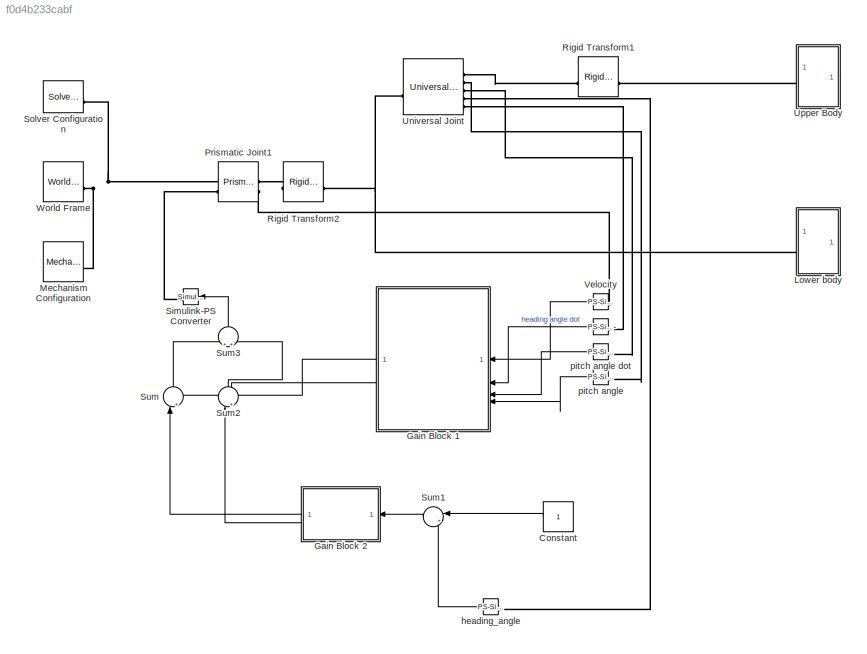
MODEL slx_f0d4b233cabf
KIND model
CONFIG AbsTol = 1e-3
CONFIG EnableMultiTasking = on
CONFIG FixedStep = auto
CONFIG MaxStep = auto
CONFIG MinStep = auto
CONFIG RelTol = 1e-3
CONFIG SampleTimeConstraint = Unconstrained
CONFIG SolverName = VariableStepAuto
CONFIG StartTime = 0.0
CONFIG StopTime = 10.0
BLOCK [Reference] -  REF=nesl_utility/PS-Simulink
Converter
  NameLocation = top
  SourceBlock = nesl_utility/PS-Simulink\nConverter
  SourceType = PS-Simulink\nConverter
BLOCK [Constant] Constant
  NameLocation = top
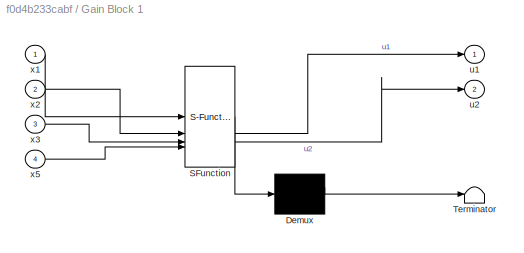
BLOCK [SubSystem] Gain Block 1
  ErrorFcn = Stateflow.Translate.translate
  PermitHierarchicalResolution = ExplicitOnly
  SFBlockType = MATLAB Function
  TreatAsAtomicUnit = on
BLOCK [Demux] Gain Block 1/ Demux 
  Outputs = 1
BLOCK [S-Function] Gain Block 1/ SFunction 
  EnableBusSupport = on
  FunctionName = sf_sfun
  PortCounts = [4 3]
  SFcnIsStateOwnerBlock = off
  SFunctionDeploymentMode = off
  Tag = Stateflow S-Function 2
BLOCK [Terminator] Gain Block 1/ Terminator 
BLOCK [Outport] Gain Block 1/u1
BLOCK [Outport] Gain Block 1/u2
  Port = 2
BLOCK [Inport] Gain Block 1/x1
BLOCK [Inport] Gain Block 1/x2
  Port = 2
BLOCK [Inport] Gain Block 1/x3
  Port = 3
BLOCK [Inport] Gain Block 1/x5
  Port = 4
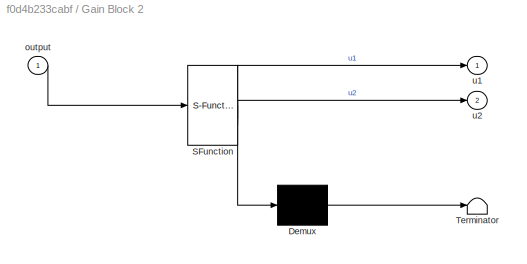
BLOCK [SubSystem] Gain Block 2
  ErrorFcn = Stateflow.Translate.translate
  NameLocation = top
  PermitHierarchicalResolution = ExplicitOnly
  SFBlockType = MATLAB Function
  TreatAsAtomicUnit = on
BLOCK [Demux] Gain Block 2/ Demux 
  Outputs = 1
BLOCK [S-Function] Gain Block 2/ SFunction 
  EnableBusSupport = on
  FunctionName = sf_sfun
  PortCounts = [1 3]
  SFcnIsStateOwnerBlock = off
  SFunctionDeploymentMode = off
  Tag = Stateflow S-Function 3
BLOCK [Terminator] Gain Block 2/ Terminator 
BLOCK [Inport] Gain Block 2/output
BLOCK [Outport] Gain Block 2/u1
BLOCK [Outport] Gain Block 2/u2
  Port = 2
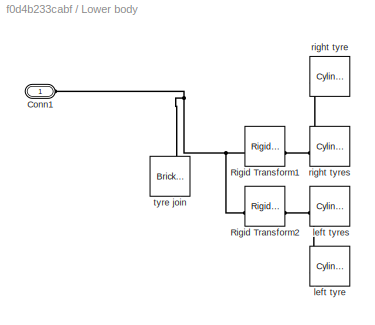
BLOCK [SubSystem] Lower body
BLOCK [PMIOPort] Lower body/Conn1
  Side = Left
BLOCK [Reference] Lower body/Rigid Transform1  REF=sm_lib/Frames and
Transforms/Rigid
Transform
  SourceBlock = sm_lib/Frames and\nTransforms/Rigid\nTransform
  SourceType = Rigid\nTransform
BLOCK [Reference] Lower body/Rigid Transform2  REF=sm_lib/Frames and
Transforms/Rigid
Transform
  SourceBlock = sm_lib/Frames and\nTransforms/Rigid\nTransform
  SourceType = Rigid\nTransform
BLOCK [Reference] Lower body/left tyre  REF=sm_lib/Body Elements/Cylindrical Solid
  NameLocation = top
  SourceBlock = sm_lib/Body Elements/Cylindrical Solid
  SourceType = Cylindrical Solid
BLOCK [Reference] Lower body/left tyres  REF=sm_lib/Body Elements/Cylindrical Solid
  NameLocation = top
  SourceBlock = sm_lib/Body Elements/Cylindrical Solid
  SourceType = Cylindrical Solid
BLOCK [Reference] Lower body/right tyre  REF=sm_lib/Body Elements/Cylindrical Solid
  NameLocation = top
  SourceBlock = sm_lib/Body Elements/Cylindrical Solid
  SourceType = Cylindrical Solid
BLOCK [Reference] Lower body/right tyres  REF=sm_lib/Body Elements/Cylindrical Solid
  NameLocation = top
  SourceBlock = sm_lib/Body Elements/Cylindrical Solid
  SourceType = Cylindrical Solid
BLOCK [Reference] Lower body/tyre join  REF=sm_lib/Body Elements/Brick Solid
  SourceBlock = sm_lib/Body Elements/Brick Solid
  SourceType = Brick Solid
BLOCK [Reference] Mechanism Configuration  REF=sm_lib/Utilities/Mechanism
Configuration
  SourceBlock = sm_lib/Utilities/Mechanism\nConfiguration
  SourceType = Mechanism\nConfiguration
BLOCK [Reference] Prismatic Joint1  REF=sm_lib/Joints/Prismatic
Joint
  SourceBlock = sm_lib/Joints/Prismatic\nJoint
  SourceType = Prismatic\nJoint
BLOCK [Reference] Rigid Transform1  REF=sm_lib/Frames and
Transforms/Rigid
Transform
  SourceBlock = sm_lib/Frames and\nTransforms/Rigid\nTransform
  SourceType = Rigid\nTransform
BLOCK [Reference] Rigid Transform2  REF=sm_lib/Frames and
Transforms/Rigid
Transform
  SourceBlock = sm_lib/Frames and\nTransforms/Rigid\nTransform
  SourceType = Rigid\nTransform
BLOCK [Reference] Simulink-PS Converter  REF=nesl_utility/Simulink-PS
Converter
  NameLocation = top
  SourceBlock = nesl_utility/Simulink-PS\nConverter
  SourceType = Simulink-PS\nConverter
BLOCK [Reference] Solver Configuration  REF=nesl_utility/Solver
Configuration
  SourceBlock = nesl_utility/Solver\nConfiguration
  SourceType = Solver\nConfiguration
BLOCK [Sum] Sum
  Inputs = |+-
  NameLocation = right
BLOCK [Sum] Sum1
  Inputs = |+-
  NameLocation = top
BLOCK [Sum] Sum2
  Inputs = |+-
  NameLocation = right
BLOCK [Sum] Sum3
  NameLocation = right
BLOCK [Reference] Universal Joint  REF=sm_lib/Joints/Universal
Joint
  SourceBlock = sm_lib/Joints/Universal\nJoint
  SourceType = Universal\nJoint
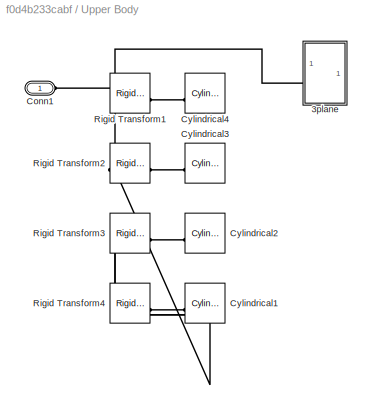
BLOCK [SubSystem] Upper Body
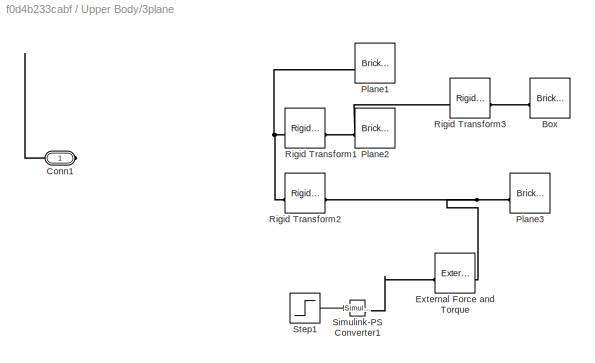
BLOCK [SubSystem] Upper Body/3plane
BLOCK [Reference] Upper Body/3plane/Box  REF=sm_lib/Body Elements/Brick Solid
  NameLocation = right
  SourceBlock = sm_lib/Body Elements/Brick Solid
  SourceType = Brick Solid
BLOCK [PMIOPort] Upper Body/3plane/Conn1
  Side = Left
BLOCK [Reference] Upper Body/3plane/External Force and Torque  REF=sm_lib/Forces and
Torques/External Force
and Torque
  SourceBlock = sm_lib/Forces and\nTorques/External Force\nand Torque
  SourceType = External Force\nand Torque
BLOCK [Reference] Upper Body/3plane/Plane1  REF=sm_lib/Body Elements/Brick Solid
  NameLocation = right
  SourceBlock = sm_lib/Body Elements/Brick Solid
  SourceType = Brick Solid
BLOCK [Reference] Upper Body/3plane/Plane2  REF=sm_lib/Body Elements/Brick Solid
  NameLocation = right
  SourceBlock = sm_lib/Body Elements/Brick Solid
  SourceType = Brick Solid
BLOCK [Reference] Upper Body/3plane/Plane3  REF=sm_lib/Body Elements/Brick Solid
  NameLocation = right
  SourceBlock = sm_lib/Body Elements/Brick Solid
  SourceType = Brick Solid
BLOCK [Reference] Upper Body/3plane/Rigid Transform1  REF=sm_lib/Frames and
Transforms/Rigid
Transform
  SourceBlock = sm_lib/Frames and\nTransforms/Rigid\nTransform
  SourceType = Rigid\nTransform
BLOCK [Reference] Upper Body/3plane/Rigid Transform2  REF=sm_lib/Frames and
Transforms/Rigid
Transform
  SourceBlock = sm_lib/Frames and\nTransforms/Rigid\nTransform
  SourceType = Rigid\nTransform
BLOCK [Reference] Upper Body/3plane/Rigid Transform3  REF=sm_lib/Frames and
Transforms/Rigid
Transform
  SourceBlock = sm_lib/Frames and\nTransforms/Rigid\nTransform
  SourceType = Rigid\nTransform
BLOCK [Reference] Upper Body/3plane/Simulink-PS Converter1  REF=nesl_utility/Simulink-PS
Converter
  SourceBlock = nesl_utility/Simulink-PS\nConverter
  SourceType = Simulink-PS\nConverter
BLOCK [Step] Upper Body/3plane/Step1
  After = 0
  Before = 2
  SampleTime = 0
  Time = 0.01
BLOCK [PMIOPort] Upper Body/Conn1
  Side = Left
BLOCK [Reference] Upper Body/Cylindrical1  REF=sm_lib/Body Elements/Cylindrical Solid
  NameLocation = top
  SourceBlock = sm_lib/Body Elements/Cylindrical Solid
  SourceType = Cylindrical Solid
BLOCK [Reference] Upper Body/Cylindrical2  REF=sm_lib/Body Elements/Cylindrical Solid
  NameLocation = top
  SourceBlock = sm_lib/Body Elements/Cylindrical Solid
  SourceType = Cylindrical Solid
BLOCK [Reference] Upper Body/Cylindrical3  REF=sm_lib/Body Elements/Cylindrical Solid
  NameLocation = top
  SourceBlock = sm_lib/Body Elements/Cylindrical Solid
  SourceType = Cylindrical Solid
BLOCK [Reference] Upper Body/Cylindrical4  REF=sm_lib/Body Elements/Cylindrical Solid
  NameLocation = top
  SourceBlock = sm_lib/Body Elements/Cylindrical Solid
  SourceType = Cylindrical Solid
BLOCK [Reference] Upper Body/Rigid Transform1  REF=sm_lib/Frames and
Transforms/Rigid
Transform
  SourceBlock = sm_lib/Frames and\nTransforms/Rigid\nTransform
  SourceType = Rigid\nTransform
BLOCK [Reference] Upper Body/Rigid Transform2  REF=sm_lib/Frames and
Transforms/Rigid
Transform
  SourceBlock = sm_lib/Frames and\nTransforms/Rigid\nTransform
  SourceType = Rigid\nTransform
BLOCK [Reference] Upper Body/Rigid Transform3  REF=sm_lib/Frames and
Transforms/Rigid
Transform
  SourceBlock = sm_lib/Frames and\nTransforms/Rigid\nTransform
  SourceType = Rigid\nTransform
BLOCK [Reference] Upper Body/Rigid Transform4  REF=sm_lib/Frames and
Transforms/Rigid
Transform
  SourceBlock = sm_lib/Frames and\nTransforms/Rigid\nTransform
  SourceType = Rigid\nTransform
BLOCK [Reference] Velocity  REF=nesl_utility/PS-Simulink
Converter
  NameLocation = top
  SourceBlock = nesl_utility/PS-Simulink\nConverter
  SourceType = PS-Simulink\nConverter
BLOCK [Reference] World Frame  REF=sm_lib/Frames and
Transforms/World Frame
  SourceBlock = sm_lib/Frames and\nTransforms/World Frame
  SourceType = World Frame
BLOCK [Reference] heading_angle  REF=nesl_utility/PS-Simulink
Converter
  NameLocation = top
  SourceBlock = nesl_utility/PS-Simulink\nConverter
  SourceType = PS-Simulink\nConverter
BLOCK [Reference] pitch angle  REF=nesl_utility/PS-Simulink
Converter
  NameLocation = top
  SourceBlock = nesl_utility/PS-Simulink\nConverter
  SourceType = PS-Simulink\nConverter
BLOCK [Reference] pitch angle dot  REF=nesl_utility/PS-Simulink
Converter
  NameLocation = top
  SourceBlock = nesl_utility/PS-Simulink\nConverter
  SourceType = PS-Simulink\nConverter
LINE -:1 -> Gain Block 1:2
LINE Constant:1 -> Sum1:1
LINE Gain Block 1:1 -> Sum:2
LINE Gain Block 1:2 -> Sum2:2
LINE Gain Block 2:1 -> Sum:1
LINE Gain Block 2:2 -> Sum2:1
LINE Sum1:1 -> Gain Block 2:1
LINE Sum2:1 -> Sum3:2
LINE Sum3:1 -> Simulink-PS Converter:1
LINE Sum:1 -> Sum3:1
LINE Upper Body/3plane/Step1:1 -> Upper Body/3plane/Simulink-PS Converter1:1
LINE Velocity:1 -> Gain Block 1:1
LINE heading_angle:1 -> Sum1:2
LINE pitch angle dot:1 -> Gain Block 1:3
LINE pitch angle:1 -> Gain Block 1:4
PLINE -:LConn1 -- Universal Joint:RConn5
PNET net1: Lower body/Conn1:RConn1 -- Lower body/Rigid Transform1:LConn1 -- Lower body/Rigid Transform2:LConn1 -- Lower body/tyre join:RConn1
PNET net2: Lower body/Rigid Transform1:RConn1 -- Lower body/right tyre:RConn1 -- Lower body/right tyres:RConn1
PNET net3: Lower body/Rigid Transform2:RConn1 -- Lower body/left tyre:RConn1 -- Lower body/left tyres:RConn1
PNET net4: Lower body:LConn1 -- Rigid Transform2:RConn1 -- Universal Joint:LConn1
PNET net5: Mechanism Configuration:RConn1 -- Prismatic Joint1:LConn1 -- Solver Configuration:RConn1 -- World Frame:RConn1
PLINE Prismatic Joint1:LConn2 -- Simulink-PS Converter:RConn1
PLINE Prismatic Joint1:RConn1 -- Rigid Transform2:LConn1
PLINE Prismatic Joint1:RConn2 -- Velocity:LConn1
PLINE Rigid Transform1:LConn1 -- Universal Joint:RConn1
PLINE Rigid Transform1:RConn1 -- Upper Body:LConn1
PLINE Universal Joint:RConn2 -- pitch angle:LConn1
PLINE Universal Joint:RConn3 -- pitch angle dot:LConn1
PLINE Universal Joint:RConn4 -- heading_angle:LConn1
PLINE Upper Body/3plane/Box:RConn1 -- Upper Body/3plane/Rigid Transform3:RConn1
PNET net6: Upper Body/3plane/Conn1:RConn1 -- Upper Body/3plane/Plane1:RConn1 -- Upper Body/3plane/Rigid Transform1:LConn1 -- Upper Body/3plane/Rigid Transform2:LConn1
PLINE Upper Body/3plane/External Force and Torque:LConn1 -- Upper Body/3plane/Simulink-PS Converter1:RConn1
PNET net7: Upper Body/3plane/External Force and Torque:RConn1 -- Upper Body/3plane/Plane3:RConn1 -- Upper Body/3plane/Rigid Transform2:RConn1
PNET net8: Upper Body/3plane/Plane2:RConn1 -- Upper Body/3plane/Rigid Transform1:RConn1 -- Upper Body/3plane/Rigid Transform3:LConn1
PNET net9: Upper Body/3plane:LConn1 -- Upper Body/Conn1:RConn1 -- Upper Body/Rigid Transform1:LConn1 -- Upper Body/Rigid Transform2:LConn1 -- Upper Body/Rigid Transform3:LConn1 -- Upper Body/Rigid Transform4:LConn1
PLINE Upper Body/Cylindrical1:RConn1 -- Upper Body/Rigid Transform4:RConn1
PLINE Upper Body/Cylindrical2:RConn1 -- Upper Body/Rigid Transform3:RConn1
PLINE Upper Body/Cylindrical3:RConn1 -- Upper Body/Rigid Transform2:RConn1
PLINE Upper Body/Cylindrical4:RConn1 -- Upper Body/Rigid Transform1:RConn1
note: PNET lines group multi-terminal physical nets as a canonical sorted terminal list (undirected conserving connections); 2-terminal nets keep the pairwise PLINE form
CHART Gain Block 1 states=1 transitions=1
  STATE_LABEL 'eML_blk_kernel()'
  STATE_LABEL 'SCRIPT:\nfunction [u1, u2] = fcn(x1, x2, x3, x5)\n\n    X = [x1; x2; x3; x5];  \n    K = [-153.4625 -16.8037  0.7071  1.7307;\n         -153.4625 -16.8037  0.7071 -1.7307]; \n\n    U = K * X; \n\n    u1 = U(1);  \n    u2 = U(2); \nend'
CHART Gain Block 2 states=1 transitions=1
  STATE_LABEL 'eML_blk_kernel()'
  STATE_LABEL 'SCRIPT:\nfunction [u1, u2] = fcn(output)\n              \n\n    K = [2.2361; -2.2361];         \n\n    U = K * output;               \n\n    u1 = U(1);                      \n    u2 = U(2);                      \nend'
CHART  states=0 transitions=0
CHART  states=0 transitions=0
